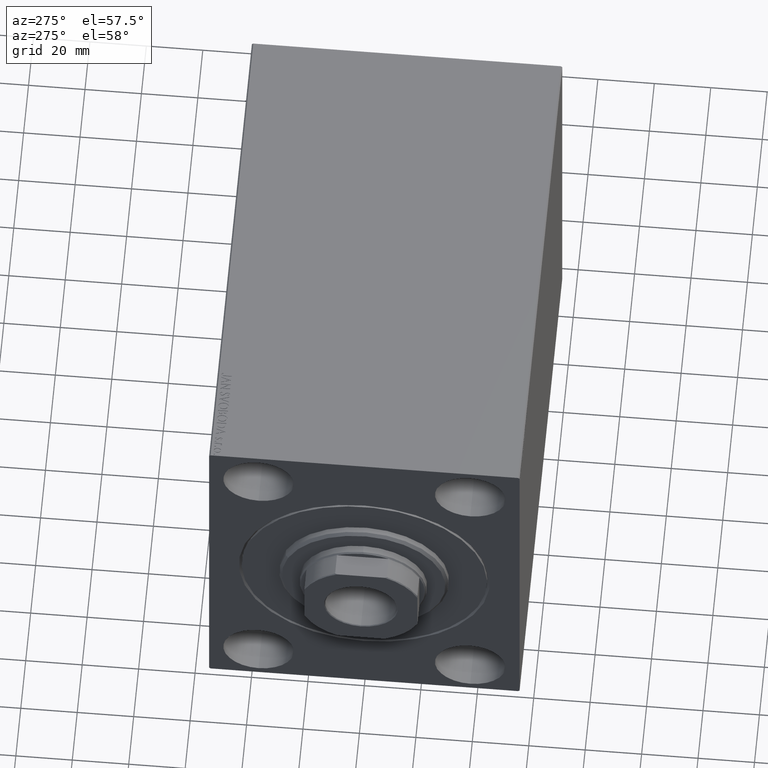
[diagram: clean part render]
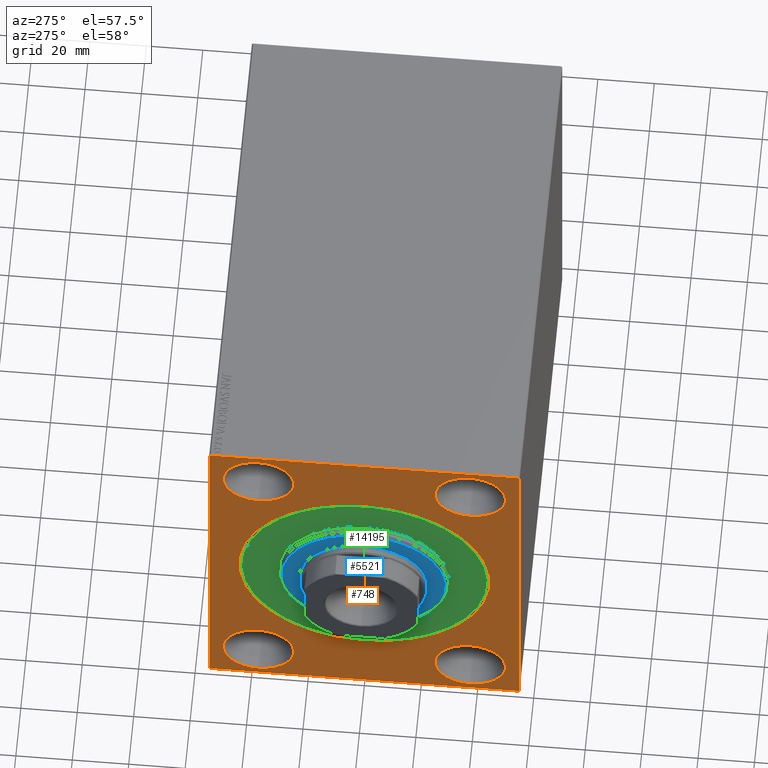
[diagram: same view with three faces highlighted in distinct colors, each labeled with its STEP entity id]
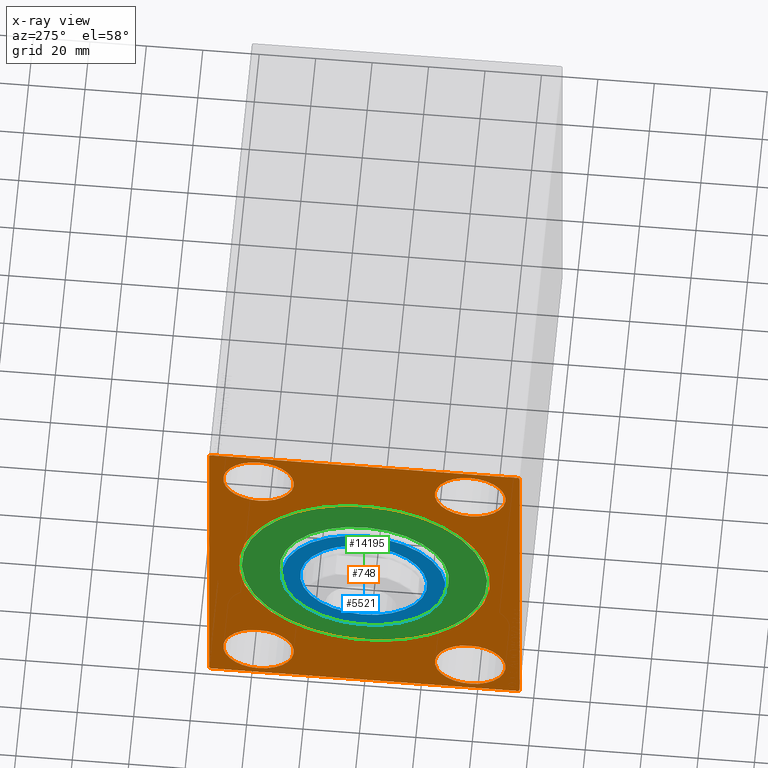
[diagram: x-ray of the same camera — body ghosted, the three highlighted faces saturated]
A machine part, auxiliary view with three faces highlighted in distinct colors.
The next image is the same camera in x-ray (body ghosted, the three faces saturated) — at least one of them is partly hidden behind the body in this view.
Their STEP definitions:

[orange] entity #748 — the highlighted planar face has unit normal (1, 0, 0).
#621 = AXIS2_PLACEMENT_3D ( 'NONE', #13490, #10816, #10153 ) ;
#660 = EDGE_LOOP ( 'NONE', ( #13147, #3093 ) ) ;
#748 = ADVANCED_FACE ( 'NONE', ( #8553, #35255, #8332, #38155, #4120, #982 ), #14822, .F. ) ;
#982 = FACE_OUTER_BOUND ( 'NONE', #34382, .T. ) ;
#1568 = VERTEX_POINT ( 'NONE', #13439 ) ;
#1852 = CARTESIAN_POINT ( 'NONE',  ( 0.000000000000000000, 0.000000000000000000, 0.000000000000000000 ) ) ;
#2076 = VERTEX_POINT ( 'NONE', #26266 ) ;
#2113 = ORIENTED_EDGE ( 'NONE', *, *, #4373, .T. ) ;
#2303 = ORIENTED_EDGE ( 'NONE', *, *, #26203, .T. ) ;
#2709 = AXIS2_PLACEMENT_3D ( 'NONE', #27757, #3479, #33749 ) ;
#3040 = EDGE_CURVE ( 'NONE', #2076, #15953, #33286, .T. ) ;
#3093 = ORIENTED_EDGE ( 'NONE', *, *, #22073, .F. ) ;
#3479 = DIRECTION ( 'NONE',  ( -1.000000000000000000, 0.000000000000000000, 0.000000000000000000 ) ) ;
#3488 = CARTESIAN_POINT ( 'NONE',  ( 0.000000000000000000, -37.50000000000000711, 67.50000000000000000 ) ) ;
#4120 = FACE_BOUND ( 'NONE', #21787, .T. ) ;
#4373 = EDGE_CURVE ( 'NONE', #20159, #25361, #14494, .T. ) ;
#4483 = LINE ( 'NONE', #34968, #9991 ) ;
#4690 = DIRECTION ( 'NONE',  ( -1.000000000000000000, 0.000000000000000000, 0.000000000000000000 ) ) ;
#4972 = CARTESIAN_POINT ( 'NONE',  ( 0.000000000000000000, 5.449678256205716459E-15, -44.49999999999995737 ) ) ;
#6044 = AXIS2_PLACEMENT_3D ( 'NONE', #7440, #21027, #14361 ) ;
#6354 = CARTESIAN_POINT ( 'NONE',  ( 0.000000000000000000, 55.00000000000002132, -69.49999999999997158 ) ) ;
#6358 = VERTEX_POINT ( 'NONE', #6474 ) ;
#6474 = CARTESIAN_POINT ( 'NONE',  ( 0.000000000000000000, -55.00000000000000711, -69.50000000000001421 ) ) ;
#6900 = VECTOR ( 'NONE', #28711, 1000.000000000000114 ) ;
#7009 = CARTESIAN_POINT ( 'NONE',  ( 0.000000000000000000, 37.50000000000000711, 55.00000000000000711 ) ) ;
#7385 = AXIS2_PLACEMENT_3D ( 'NONE', #12253, #32492, #11813 ) ;
#7440 = CARTESIAN_POINT ( 'NONE',  ( 0.000000000000000000, 37.49999999999997868, -54.99999999999999289 ) ) ;
#7571 = CIRCLE ( 'NONE', #26141, 12.49999999999999645 ) ;
#7602 = DIRECTION ( 'NONE',  ( -0.000000000000000000, -0.7071067811865574537, 0.7071067811865376918 ) ) ;
#7703 = CARTESIAN_POINT ( 'NONE',  ( 0.000000000000000000, 54.49999999999999289, -70.00000000000000000 ) ) ;
#8206 = CARTESIAN_POINT ( 'NONE',  ( 0.000000000000000000, 54.99999999999999289, 69.49999999999997158 ) ) ;
#8332 = FACE_BOUND ( 'NONE', #660, .T. ) ;
#8336 = AXIS2_PLACEMENT_3D ( 'NONE', #15182, #42071, #42728 ) ;
#8553 = FACE_BOUND ( 'NONE', #24695, .T. ) ;
#9053 = DIRECTION ( 'NONE',  ( 0.000000000000000000, -0.7071067811865474617, -0.7071067811865474617 ) ) ;
#9462 = EDGE_CURVE ( 'NONE', #23712, #42769, #39722, .T. ) ;
#9991 = VECTOR ( 'NONE', #7602, 999.9999999999998863 ) ;
#10153 = DIRECTION ( 'NONE',  ( 0.000000000000000000, 0.000000000000000000, -1.000000000000000000 ) ) ;
#10687 = ORIENTED_EDGE ( 'NONE', *, *, #9462, .T. ) ;
#10766 = LINE ( 'NONE', #20787, #13709 ) ;
#10816 = DIRECTION ( 'NONE',  ( 1.000000000000000000, 0.000000000000000000, 0.000000000000000000 ) ) ;
#11032 = CARTESIAN_POINT ( 'NONE',  ( 0.000000000000000000, 0.000000000000000000, 44.49999999999995737 ) ) ;
#11813 = DIRECTION ( 'NONE',  ( 0.000000000000000000, 0.000000000000000000, 1.000000000000000000 ) ) ;
#12121 = DIRECTION ( 'NONE',  ( 1.000000000000000000, 0.000000000000000000, 0.000000000000000000 ) ) ;
#12189 = LINE ( 'NONE', #6354, #37272 ) ;
#12253 = CARTESIAN_POINT ( 'NONE',  ( 0.000000000000000000, -37.50000000000000711, 55.00000000000000711 ) ) ;
#12436 = CARTESIAN_POINT ( 'NONE',  ( 0.000000000000000000, 54.49999999999996447, 70.00000000000000000 ) ) ;
#12581 = AXIS2_PLACEMENT_3D ( 'NONE', #1852, #12121, #42790 ) ;
#13147 = ORIENTED_EDGE ( 'NONE', *, *, #29049, .F. ) ;
#13258 = CARTESIAN_POINT ( 'NONE',  ( 0.000000000000000000, -54.49999999999997868, -70.00000000000002842 ) ) ;
#13439 = CARTESIAN_POINT ( 'NONE',  ( 0.000000000000000000, -37.50000000000000711, 42.50000000000000711 ) ) ;
#13479 = DIRECTION ( 'NONE',  ( -1.000000000000000000, 0.000000000000000000, 0.000000000000000000 ) ) ;
#13490 = CARTESIAN_POINT ( 'NONE',  ( 0.000000000000000000, 0.000000000000000000, 0.000000000000000000 ) ) ;
#13709 = VECTOR ( 'NONE', #14778, 1000.000000000000000 ) ;
#14029 = CARTESIAN_POINT ( 'NONE',  ( 0.000000000000000000, -55.00000000000000711, -70.00000000000002842 ) ) ;
#14361 = DIRECTION ( 'NONE',  ( 0.000000000000000000, 0.000000000000000000, 1.000000000000000000 ) ) ;
#14380 = ORIENTED_EDGE ( 'NONE', *, *, #14995, .T. ) ;
#14494 = LINE ( 'NONE', #21374, #6900 ) ;
#14702 = VERTEX_POINT ( 'NONE', #7703 ) ;
#14778 = DIRECTION ( 'NONE',  ( 0.000000000000000000, -1.982541115402065110E-16, 1.000000000000000000 ) ) ;
#14822 = PLANE ( 'NONE',  #21159 ) ;
#14957 = CARTESIAN_POINT ( 'NONE',  ( 0.000000000000000000, -37.50000000000002132, -54.99999999999999289 ) ) ;
#14995 = EDGE_CURVE ( 'NONE', #23490, #6358, #4483, .T. ) ;
#15182 = CARTESIAN_POINT ( 'NONE',  ( 0.000000000000000000, 37.49999999999997868, -54.99999999999999289 ) ) ;
#15476 = AXIS2_PLACEMENT_3D ( 'NONE', #38252, #30709, #20699 ) ;
#15953 = VERTEX_POINT ( 'NONE', #28532 ) ;
#16984 = ORIENTED_EDGE ( 'NONE', *, *, #3040, .F. ) ;
#17519 = EDGE_CURVE ( 'NONE', #38370, #35474, #42758, .T. ) ;
#17653 = CARTESIAN_POINT ( 'NONE',  ( 0.000000000000000000, 37.50000000000000711, 67.50000000000000000 ) ) ;
#18140 = CIRCLE ( 'NONE', #6044, 12.49999999999999645 ) ;
#18279 = DIRECTION ( 'NONE',  ( 0.000000000000000000, 0.000000000000000000, 1.000000000000000000 ) ) ;
#18711 = CARTESIAN_POINT ( 'NONE',  ( 0.000000000000000000, -54.50000000000000711, 69.99999999999998579 ) ) ;
#18769 = VERTEX_POINT ( 'NONE', #19891 ) ;
#18850 = CARTESIAN_POINT ( 'NONE',  ( 0.000000000000000000, 54.99999999999999289, 70.00000000000000000 ) ) ;
#19193 = DIRECTION ( 'NONE',  ( 0.000000000000000000, 0.000000000000000000, 1.000000000000000000 ) ) ;
#19891 = CARTESIAN_POINT ( 'NONE',  ( 0.000000000000000000, 37.49999999999997868, -42.49999999999999289 ) ) ;
#20159 = VERTEX_POINT ( 'NONE', #22689 ) ;
#20246 = DIRECTION ( 'NONE',  ( 0.000000000000000000, 1.000000000000000000, 2.523234146875355012E-16 ) ) ;
#20295 = EDGE_CURVE ( 'NONE', #33398, #25361, #25959, .T. ) ;
#20483 = ORIENTED_EDGE ( 'NONE', *, *, #43831, .F. ) ;
#20537 = CARTESIAN_POINT ( 'NONE',  ( 0.000000000000000000, 37.50000000000000711, 42.50000000000000711 ) ) ;
#20699 = DIRECTION ( 'NONE',  ( 0.000000000000000000, 0.000000000000000000, 1.000000000000000000 ) ) ;
#20740 = AXIS2_PLACEMENT_3D ( 'NONE', #7009, #13479, #27049 ) ;
#20787 = CARTESIAN_POINT ( 'NONE',  ( 0.000000000000000000, 55.00000000000002132, -70.00000000000000000 ) ) ;
#21027 = DIRECTION ( 'NONE',  ( -1.000000000000000000, 0.000000000000000000, 0.000000000000000000 ) ) ;
#21159 = AXIS2_PLACEMENT_3D ( 'NONE', #28377, #28595, #28814 ) ;
#21214 = VERTEX_POINT ( 'NONE', #29626 ) ;
#21374 = CARTESIAN_POINT ( 'NONE',  ( 0.000000000000000000, -55.00000000000000711, 69.49999999999998579 ) ) ;
#21718 = VECTOR ( 'NONE', #20246, 1000.000000000000000 ) ;
#21765 = EDGE_CURVE ( 'NONE', #20159, #6358, #25534, .T. ) ;
#21787 = EDGE_LOOP ( 'NONE', ( #24392, #16984 ) ) ;
#21838 = CIRCLE ( 'NONE', #8336, 12.49999999999999645 ) ;
#22073 = EDGE_CURVE ( 'NONE', #1568, #35189, #30002, .T. ) ;
#22398 = CARTESIAN_POINT ( 'NONE',  ( 0.000000000000000000, -55.00000000000000711, 69.99999999999998579 ) ) ;
#22689 = CARTESIAN_POINT ( 'NONE',  ( 0.000000000000000000, -55.00000000000000711, 69.49999999999998579 ) ) ;
#22880 = AXIS2_PLACEMENT_3D ( 'NONE', #36081, #32540, #19193 ) ;
#23490 = VERTEX_POINT ( 'NONE', #13258 ) ;
#23712 = VERTEX_POINT ( 'NONE', #11032 ) ;
#24392 = ORIENTED_EDGE ( 'NONE', *, *, #42100, .F. ) ;
#24663 = CIRCLE ( 'NONE', #15476, 12.49999999999999645 ) ;
#24695 = EDGE_LOOP ( 'NONE', ( #10687, #33826 ) ) ;
#24980 = EDGE_CURVE ( 'NONE', #21214, #41001, #10766, .T. ) ;
#25361 = VERTEX_POINT ( 'NONE', #18711 ) ;
#25534 = LINE ( 'NONE', #22398, #32100 ) ;
#25706 = ORIENTED_EDGE ( 'NONE', *, *, #41846, .T. ) ;
#25959 = LINE ( 'NONE', #18850, #39970 ) ;
#26141 = AXIS2_PLACEMENT_3D ( 'NONE', #14957, #4690, #18279 ) ;
#26203 = EDGE_CURVE ( 'NONE', #21214, #14702, #12189, .T. ) ;
#26266 = CARTESIAN_POINT ( 'NONE',  ( 0.000000000000000000, -37.50000000000002132, -67.49999999999998579 ) ) ;
#26705 = ORIENTED_EDGE ( 'NONE', *, *, #44048, .F. ) ;
#27049 = DIRECTION ( 'NONE',  ( 0.000000000000000000, 0.000000000000000000, 1.000000000000000000 ) ) ;
#27757 = CARTESIAN_POINT ( 'NONE',  ( 0.000000000000000000, -37.50000000000002132, -54.99999999999999289 ) ) ;
#28110 = VERTEX_POINT ( 'NONE', #37803 ) ;
#28377 = CARTESIAN_POINT ( 'NONE',  ( 0.000000000000000000, 0.000000000000000000, 0.000000000000000000 ) ) ;
#28532 = CARTESIAN_POINT ( 'NONE',  ( 0.000000000000000000, -37.50000000000002132, -42.49999999999999289 ) ) ;
#28595 = DIRECTION ( 'NONE',  ( 1.000000000000000000, 0.000000000000000000, 0.000000000000000000 ) ) ;
#28711 = DIRECTION ( 'NONE',  ( -0.000000000000000000, 0.7071067811865474617, 0.7071067811865474617 ) ) ;
#28814 = DIRECTION ( 'NONE',  ( 0.000000000000000000, 0.000000000000000000, -1.000000000000000000 ) ) ;
#29049 = EDGE_CURVE ( 'NONE', #35189, #1568, #42877, .T. ) ;
#29626 = CARTESIAN_POINT ( 'NONE',  ( 0.000000000000000000, 55.00000000000002132, -69.49999999999997158 ) ) ;
#30002 = CIRCLE ( 'NONE', #22880, 12.49999999999999645 ) ;
#30134 = ORIENTED_EDGE ( 'NONE', *, *, #21765, .F. ) ;
#30498 = ORIENTED_EDGE ( 'NONE', *, *, #20295, .F. ) ;
#30709 = DIRECTION ( 'NONE',  ( -1.000000000000000000, 0.000000000000000000, 0.000000000000000000 ) ) ;
#31720 = VECTOR ( 'NONE', #33634, 1000.000000000000114 ) ;
#32100 = VECTOR ( 'NONE', #39093, 1000.000000000000000 ) ;
#32492 = DIRECTION ( 'NONE',  ( -1.000000000000000000, 0.000000000000000000, 0.000000000000000000 ) ) ;
#32540 = DIRECTION ( 'NONE',  ( -1.000000000000000000, 0.000000000000000000, 0.000000000000000000 ) ) ;
#32606 = EDGE_LOOP ( 'NONE', ( #42585, #20483 ) ) ;
#32970 = EDGE_LOOP ( 'NONE', ( #26705, #34457 ) ) ;
#32983 = EDGE_CURVE ( 'NONE', #18769, #28110, #18140, .T. ) ;
#33185 = CIRCLE ( 'NONE', #12581, 44.49999999999995737 ) ;
#33286 = CIRCLE ( 'NONE', #2709, 12.49999999999999645 ) ;
#33398 = VERTEX_POINT ( 'NONE', #12436 ) ;
#33634 = DIRECTION ( 'NONE',  ( -0.000000000000000000, 0.7071067811865474617, -0.7071067811865474617 ) ) ;
#33749 = DIRECTION ( 'NONE',  ( 0.000000000000000000, 0.000000000000000000, 1.000000000000000000 ) ) ;
#33826 = ORIENTED_EDGE ( 'NONE', *, *, #38331, .T. ) ;
#34382 = EDGE_LOOP ( 'NONE', ( #30134, #2113, #30498, #25706, #38152, #2303, #37044, #14380 ) ) ;
#34457 = ORIENTED_EDGE ( 'NONE', *, *, #17519, .F. ) ;
#34819 = EDGE_CURVE ( 'NONE', #23490, #14702, #41373, .T. ) ;
#34968 = CARTESIAN_POINT ( 'NONE',  ( 0.000000000000000000, -54.49999999999997868, -70.00000000000002842 ) ) ;
#35189 = VERTEX_POINT ( 'NONE', #3488 ) ;
#35255 = FACE_BOUND ( 'NONE', #32606, .T. ) ;
#35474 = VERTEX_POINT ( 'NONE', #17653 ) ;
#36081 = CARTESIAN_POINT ( 'NONE',  ( 0.000000000000000000, -37.50000000000000711, 55.00000000000000711 ) ) ;
#36398 = DIRECTION ( 'NONE',  ( 0.000000000000000000, -1.000000000000000000, -1.261617073437677999E-16 ) ) ;
#36537 = CARTESIAN_POINT ( 'NONE',  ( 0.000000000000000000, 54.49999999999996447, 70.00000000000000000 ) ) ;
#37044 = ORIENTED_EDGE ( 'NONE', *, *, #34819, .F. ) ;
#37272 = VECTOR ( 'NONE', #9053, 1000.000000000000114 ) ;
#37803 = CARTESIAN_POINT ( 'NONE',  ( 0.000000000000000000, 37.49999999999997868, -67.49999999999998579 ) ) ;
#38152 = ORIENTED_EDGE ( 'NONE', *, *, #24980, .F. ) ;
#38155 = FACE_BOUND ( 'NONE', #32970, .T. ) ;
#38252 = CARTESIAN_POINT ( 'NONE',  ( 0.000000000000000000, 37.50000000000000711, 55.00000000000000711 ) ) ;
#38331 = EDGE_CURVE ( 'NONE', #42769, #23712, #33185, .T. ) ;
#38370 = VERTEX_POINT ( 'NONE', #20537 ) ;
#39093 = DIRECTION ( 'NONE',  ( 0.000000000000000000, 0.000000000000000000, -1.000000000000000000 ) ) ;
#39435 = LINE ( 'NONE', #36537, #31720 ) ;
#39722 = CIRCLE ( 'NONE', #621, 44.49999999999995737 ) ;
#39970 = VECTOR ( 'NONE', #36398, 1000.000000000000000 ) ;
#41001 = VERTEX_POINT ( 'NONE', #8206 ) ;
#41373 = LINE ( 'NONE', #14029, #21718 ) ;
#41846 = EDGE_CURVE ( 'NONE', #33398, #41001, #39435, .T. ) ;
#42071 = DIRECTION ( 'NONE',  ( -1.000000000000000000, 0.000000000000000000, 0.000000000000000000 ) ) ;
#42100 = EDGE_CURVE ( 'NONE', #15953, #2076, #7571, .T. ) ;
#42585 = ORIENTED_EDGE ( 'NONE', *, *, #32983, .F. ) ;
#42728 = DIRECTION ( 'NONE',  ( 0.000000000000000000, 0.000000000000000000, 1.000000000000000000 ) ) ;
#42758 = CIRCLE ( 'NONE', #20740, 12.49999999999999645 ) ;
#42769 = VERTEX_POINT ( 'NONE', #4972 ) ;
#42790 = DIRECTION ( 'NONE',  ( 0.000000000000000000, 0.000000000000000000, -1.000000000000000000 ) ) ;
#42877 = CIRCLE ( 'NONE', #7385, 12.49999999999999645 ) ;
#43831 = EDGE_CURVE ( 'NONE', #28110, #18769, #21838, .T. ) ;
#44048 = EDGE_CURVE ( 'NONE', #35474, #38370, #24663, .T. ) ;

[blue] entity #5521 — the highlighted planar face has unit normal (-1, 0, 0).
#194 = CARTESIAN_POINT ( 'NONE',  ( 3.000000000000000000, 0.000000000000000000, 0.000000000000000000 ) ) ;
#2544 = VERTEX_POINT ( 'NONE', #20291 ) ;
#2955 = DIRECTION ( 'NONE',  ( 1.000000000000000000, 0.000000000000000000, 0.000000000000000000 ) ) ;
#3384 = VERTEX_POINT ( 'NONE', #30595 ) ;
#4081 = VERTEX_POINT ( 'NONE', #26603 ) ;
#4476 = ORIENTED_EDGE ( 'NONE', *, *, #4624, .T. ) ;
#4624 = EDGE_CURVE ( 'NONE', #3384, #21972, #32596, .T. ) ;
#5521 = ADVANCED_FACE ( 'NONE', ( #15655, #42761 ), #25216, .T. ) ;
#7743 = CARTESIAN_POINT ( 'NONE',  ( 3.000000000000000000, 0.000000000000000000, 0.000000000000000000 ) ) ;
#11093 = DIRECTION ( 'NONE',  ( 0.000000000000000000, 0.000000000000000000, -1.000000000000000000 ) ) ;
#11419 = CARTESIAN_POINT ( 'NONE',  ( 3.000000000000000000, 0.000000000000000000, 28.99999999999999289 ) ) ;
#13645 = AXIS2_PLACEMENT_3D ( 'NONE', #7743, #18205, #11093 ) ;
#15655 = FACE_OUTER_BOUND ( 'NONE', #43878, .T. ) ;
#15872 = DIRECTION ( 'NONE',  ( 1.000000000000000000, -0.000000000000000000, 0.000000000000000000 ) ) ;
#17249 = AXIS2_PLACEMENT_3D ( 'NONE', #20551, #2955, #30123 ) ;
#18205 = DIRECTION ( 'NONE',  ( 1.000000000000000000, 0.000000000000000000, 0.000000000000000000 ) ) ;
#18996 = AXIS2_PLACEMENT_3D ( 'NONE', #33780, #27787, #27570 ) ;
#19896 = EDGE_LOOP ( 'NONE', ( #39960, #34640 ) ) ;
#20291 = CARTESIAN_POINT ( 'NONE',  ( 3.000000000000000000, 0.000000000000000000, -22.50000000000000355 ) ) ;
#20551 = CARTESIAN_POINT ( 'NONE',  ( 3.000000000000000000, 0.000000000000000000, 0.000000000000000000 ) ) ;
#21972 = VERTEX_POINT ( 'NONE', #11419 ) ;
#22513 = EDGE_CURVE ( 'NONE', #2544, #4081, #37065, .T. ) ;
#23917 = EDGE_CURVE ( 'NONE', #4081, #2544, #42785, .T. ) ;
#25216 = PLANE ( 'NONE',  #42446 ) ;
#25220 = CIRCLE ( 'NONE', #40819, 28.99999999999999289 ) ;
#25734 = ORIENTED_EDGE ( 'NONE', *, *, #32318, .T. ) ;
#26603 = CARTESIAN_POINT ( 'NONE',  ( 3.000000000000000000, 2.755455298081545172E-15, 22.50000000000000355 ) ) ;
#27570 = DIRECTION ( 'NONE',  ( 0.000000000000000000, 0.000000000000000000, -1.000000000000000000 ) ) ;
#27787 = DIRECTION ( 'NONE',  ( 1.000000000000000000, -0.000000000000000000, 0.000000000000000000 ) ) ;
#28237 = DIRECTION ( 'NONE',  ( 1.000000000000000000, -0.000000000000000000, 0.000000000000000000 ) ) ;
#29428 = DIRECTION ( 'NONE',  ( 0.000000000000000000, 0.000000000000000000, -1.000000000000000000 ) ) ;
#30123 = DIRECTION ( 'NONE',  ( 0.000000000000000000, 0.000000000000000000, -1.000000000000000000 ) ) ;
#30595 = CARTESIAN_POINT ( 'NONE',  ( 3.000000000000000000, 3.612708057484691604E-15, -28.99999999999999289 ) ) ;
#32318 = EDGE_CURVE ( 'NONE', #21972, #3384, #25220, .T. ) ;
#32596 = CIRCLE ( 'NONE', #18996, 28.99999999999999289 ) ;
#33780 = CARTESIAN_POINT ( 'NONE',  ( 3.000000000000000000, 0.000000000000000000, 0.000000000000000000 ) ) ;
#34640 = ORIENTED_EDGE ( 'NONE', *, *, #23917, .F. ) ;
#35444 = CARTESIAN_POINT ( 'NONE',  ( 3.000000000000000000, 0.000000000000000000, 0.000000000000000000 ) ) ;
#37065 = CIRCLE ( 'NONE', #13645, 22.50000000000000355 ) ;
#38026 = DIRECTION ( 'NONE',  ( 0.000000000000000000, 0.000000000000000000, -1.000000000000000000 ) ) ;
#39960 = ORIENTED_EDGE ( 'NONE', *, *, #22513, .F. ) ;
#40819 = AXIS2_PLACEMENT_3D ( 'NONE', #194, #28237, #38026 ) ;
#42446 = AXIS2_PLACEMENT_3D ( 'NONE', #35444, #15872, #29428 ) ;
#42761 = FACE_BOUND ( 'NONE', #19896, .T. ) ;
#42785 = CIRCLE ( 'NONE', #17249, 22.50000000000000355 ) ;
#43878 = EDGE_LOOP ( 'NONE', ( #25734, #4476 ) ) ;

[green] entity #14195 — the highlighted planar face has unit normal (1, 0, -0).
#133 = EDGE_CURVE ( 'NONE', #33775, #35044, #41722, .T. ) ;
#1103 = DIRECTION ( 'NONE',  ( -1.000000000000000000, 0.000000000000000000, 0.000000000000000000 ) ) ;
#1959 = EDGE_CURVE ( 'NONE', #10745, #26738, #17646, .T. ) ;
#2485 = CARTESIAN_POINT ( 'NONE',  ( 0.000000000000000000, 0.000000000000000000, -43.50000000000000000 ) ) ;
#3056 = CARTESIAN_POINT ( 'NONE',  ( 0.000000000000000000, 0.000000000000000000, 0.000000000000000000 ) ) ;
#6904 = AXIS2_PLACEMENT_3D ( 'NONE', #9591, #30883, #41324 ) ;
#7796 = DIRECTION ( 'NONE',  ( 0.000000000000000000, 0.000000000000000000, 1.000000000000000000 ) ) ;
#8870 = DIRECTION ( 'NONE',  ( 1.000000000000000000, -0.000000000000000000, 0.000000000000000000 ) ) ;
#9591 = CARTESIAN_POINT ( 'NONE',  ( 0.000000000000000000, 0.000000000000000000, 0.000000000000000000 ) ) ;
#10745 = VERTEX_POINT ( 'NONE', #2485 ) ;
#10773 = CARTESIAN_POINT ( 'NONE',  ( 0.000000000000000000, 0.000000000000000000, 0.000000000000000000 ) ) ;
#14195 = ADVANCED_FACE ( 'NONE', ( #37690, #33900 ), #30577, .F. ) ;
#14700 = EDGE_CURVE ( 'NONE', #26738, #10745, #31342, .T. ) ;
#15219 = ORIENTED_EDGE ( 'NONE', *, *, #133, .F. ) ;
#16176 = ORIENTED_EDGE ( 'NONE', *, *, #1959, .F. ) ;
#17646 = CIRCLE ( 'NONE', #42484, 43.50000000000000000 ) ;
#17855 = AXIS2_PLACEMENT_3D ( 'NONE', #28835, #38617, #38179 ) ;
#20566 = DIRECTION ( 'NONE',  ( -1.000000000000000000, 0.000000000000000000, 0.000000000000000000 ) ) ;
#21335 = AXIS2_PLACEMENT_3D ( 'NONE', #10773, #20566, #23450 ) ;
#23251 = EDGE_LOOP ( 'NONE', ( #16176, #43826 ) ) ;
#23450 = DIRECTION ( 'NONE',  ( 0.000000000000000000, 0.000000000000000000, 1.000000000000000000 ) ) ;
#24607 = AXIS2_PLACEMENT_3D ( 'NONE', #3056, #8870, #39794 ) ;
#24991 = CARTESIAN_POINT ( 'NONE',  ( 0.000000000000000000, 5.327213576290986044E-15, 43.50000000000000000 ) ) ;
#26738 = VERTEX_POINT ( 'NONE', #24991 ) ;
#28835 = CARTESIAN_POINT ( 'NONE',  ( 0.000000000000000000, 0.000000000000000000, 0.000000000000000000 ) ) ;
#30380 = CARTESIAN_POINT ( 'NONE',  ( 0.000000000000000000, 3.673940397442059178E-15, -30.00000000000000000 ) ) ;
#30577 = PLANE ( 'NONE',  #21335 ) ;
#30883 = DIRECTION ( 'NONE',  ( 1.000000000000000000, -0.000000000000000000, 0.000000000000000000 ) ) ;
#31342 = CIRCLE ( 'NONE', #17855, 43.50000000000000000 ) ;
#33443 = EDGE_LOOP ( 'NONE', ( #37106, #15219 ) ) ;
#33775 = VERTEX_POINT ( 'NONE', #30380 ) ;
#33900 = FACE_OUTER_BOUND ( 'NONE', #23251, .T. ) ;
#34911 = CARTESIAN_POINT ( 'NONE',  ( 0.000000000000000000, 0.000000000000000000, 30.00000000000000000 ) ) ;
#35044 = VERTEX_POINT ( 'NONE', #34911 ) ;
#35953 = EDGE_CURVE ( 'NONE', #35044, #33775, #41651, .T. ) ;
#37106 = ORIENTED_EDGE ( 'NONE', *, *, #35953, .F. ) ;
#37690 = FACE_BOUND ( 'NONE', #33443, .T. ) ;
#38179 = DIRECTION ( 'NONE',  ( 0.000000000000000000, 0.000000000000000000, 1.000000000000000000 ) ) ;
#38274 = CARTESIAN_POINT ( 'NONE',  ( 0.000000000000000000, 0.000000000000000000, 0.000000000000000000 ) ) ;
#38617 = DIRECTION ( 'NONE',  ( -1.000000000000000000, 0.000000000000000000, 0.000000000000000000 ) ) ;
#39794 = DIRECTION ( 'NONE',  ( 0.000000000000000000, 0.000000000000000000, -1.000000000000000000 ) ) ;
#41324 = DIRECTION ( 'NONE',  ( 0.000000000000000000, 0.000000000000000000, -1.000000000000000000 ) ) ;
#41651 = CIRCLE ( 'NONE', #24607, 30.00000000000000000 ) ;
#41722 = CIRCLE ( 'NONE', #6904, 30.00000000000000000 ) ;
#42484 = AXIS2_PLACEMENT_3D ( 'NONE', #38274, #1103, #7796 ) ;
#43826 = ORIENTED_EDGE ( 'NONE', *, *, #14700, .F. ) ;